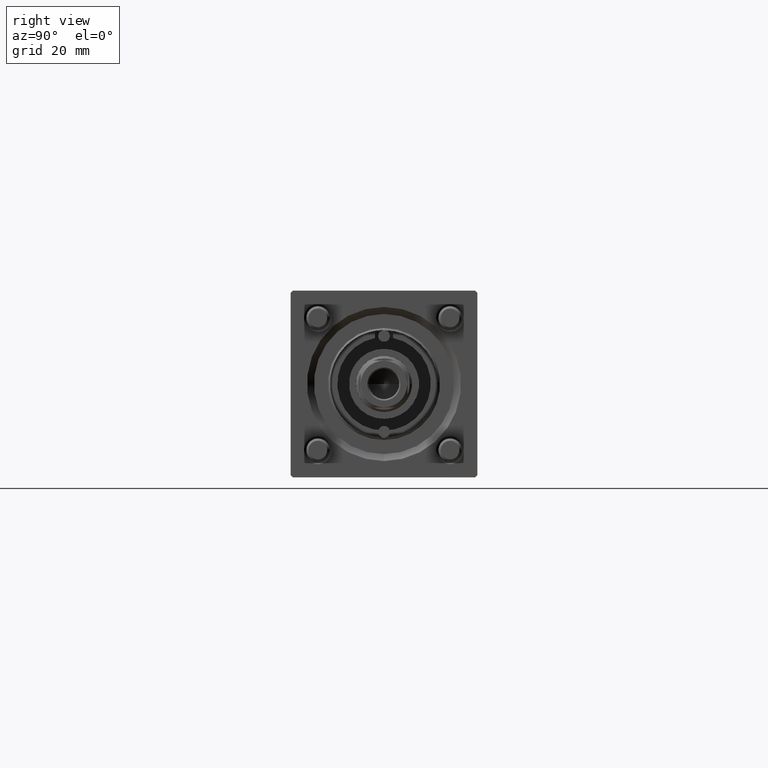
[diagram: clean part render]
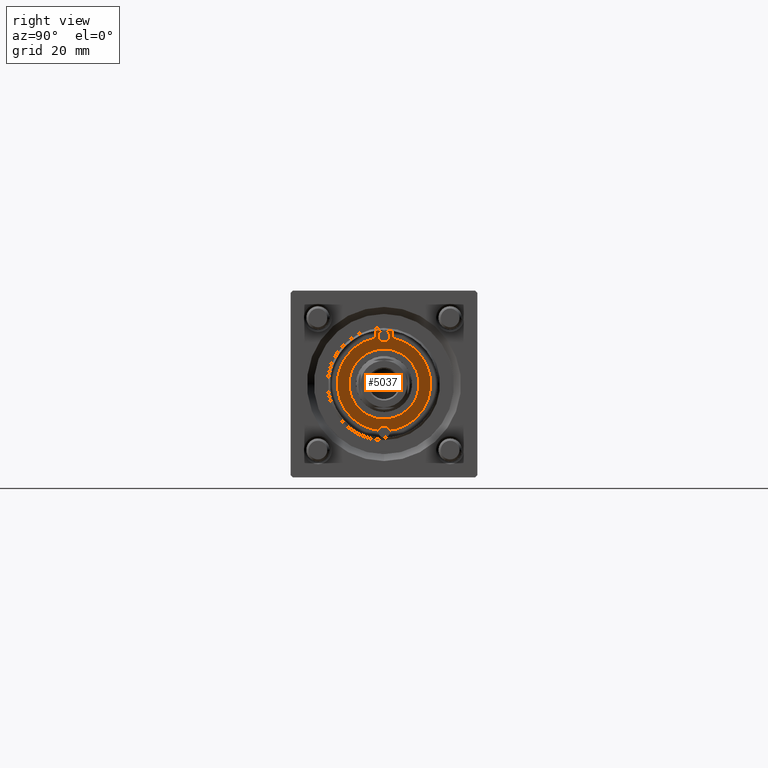
[diagram: same view with one face highlighted and labeled with its STEP entity id]
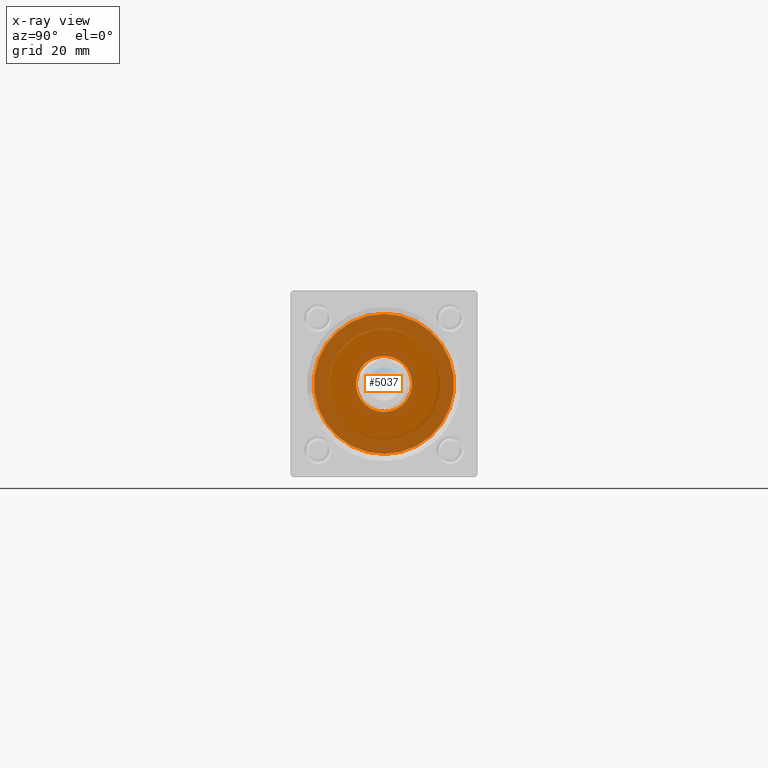
[diagram: x-ray of the same camera — body ghosted, the highlighted face saturated]
A machine part, right view. The second image highlights one B-rep face of the part: STEP entity #5037.
The next image is the same camera in x-ray: the body ghosted, the highlighted face saturated — about 61% of this face is hidden behind the body in this view.
In plain terms, the highlighted planar face has unit normal (1, 0, 0).
Its self-contained STEP definition (entity closure, byte-faithful):
#311 = DIRECTION ( 'NONE',  ( -0.000000000000000000, -0.000000000000000000, -1.000000000000000000 ) ) ;
#436 = DIRECTION ( 'NONE',  ( 1.000000000000000000, 0.000000000000000000, 0.000000000000000000 ) ) ;
#2588 = ORIENTED_EDGE ( 'NONE', *, *, #53314, .F. ) ;
#3726 = EDGE_LOOP ( 'NONE', ( #29638, #18671 ) ) ;
#4458 = CIRCLE ( 'NONE', #52230, 15.00000000000000000 ) ;
#5037 = ADVANCED_FACE ( 'NONE', ( #38683, #11934 ), #16527, .F. ) ;
#7606 = EDGE_CURVE ( 'NONE', #56659, #45566, #43214, .T. ) ;
#8229 = CIRCLE ( 'NONE', #18349, 6.000000000000000888 ) ;
#9208 = DIRECTION ( 'NONE',  ( 1.000000000000000000, 0.000000000000000000, 0.000000000000000000 ) ) ;
#9790 = CARTESIAN_POINT ( 'NONE',  ( 0.000000000000000000, 0.000000000000000000, 0.000000000000000000 ) ) ;
#11934 = FACE_OUTER_BOUND ( 'NONE', #3726, .T. ) ;
#13056 = DIRECTION ( 'NONE',  ( 0.000000000000000000, 0.000000000000000000, 1.000000000000000000 ) ) ;
#13495 = EDGE_CURVE ( 'NONE', #45566, #56659, #4458, .T. ) ;
#16527 = PLANE ( 'NONE',  #21064 ) ;
#18349 = AXIS2_PLACEMENT_3D ( 'NONE', #9790, #311, #9208 ) ;
#18401 = AXIS2_PLACEMENT_3D ( 'NONE', #52781, #34392, #44155 ) ;
#18671 = ORIENTED_EDGE ( 'NONE', *, *, #7606, .F. ) ;
#19504 = CARTESIAN_POINT ( 'NONE',  ( 6.000000000000000888, 0.000000000000000000, 0.000000000000000000 ) ) ;
#20992 = EDGE_CURVE ( 'NONE', #32899, #48872, #8229, .T. ) ;
#21064 = AXIS2_PLACEMENT_3D ( 'NONE', #47023, #13056, #56226 ) ;
#21613 = CARTESIAN_POINT ( 'NONE',  ( -15.00000000000000000, 0.000000000000000000, 0.000000000000000000 ) ) ;
#23353 = ORIENTED_EDGE ( 'NONE', *, *, #20992, .F. ) ;
#29638 = ORIENTED_EDGE ( 'NONE', *, *, #13495, .F. ) ;
#30827 = CARTESIAN_POINT ( 'NONE',  ( 15.00000000000000000, 1.836970198721029589E-15, 0.000000000000000000 ) ) ;
#32899 = VERTEX_POINT ( 'NONE', #19504 ) ;
#34392 = DIRECTION ( 'NONE',  ( 0.000000000000000000, 0.000000000000000000, 1.000000000000000000 ) ) ;
#38152 = DIRECTION ( 'NONE',  ( -0.000000000000000000, -0.000000000000000000, -1.000000000000000000 ) ) ;
#38683 = FACE_BOUND ( 'NONE', #43648, .T. ) ;
#42475 = CARTESIAN_POINT ( 'NONE',  ( 0.000000000000000000, 0.000000000000000000, 0.000000000000000000 ) ) ;
#42768 = CARTESIAN_POINT ( 'NONE',  ( -6.000000000000000888, 7.347880794884119736E-16, 0.000000000000000000 ) ) ;
#43214 = CIRCLE ( 'NONE', #18401, 15.00000000000000000 ) ;
#43648 = EDGE_LOOP ( 'NONE', ( #23353, #2588 ) ) ;
#44155 = DIRECTION ( 'NONE',  ( 1.000000000000000000, 0.000000000000000000, 0.000000000000000000 ) ) ;
#45029 = AXIS2_PLACEMENT_3D ( 'NONE', #42475, #38152, #436 ) ;
#45566 = VERTEX_POINT ( 'NONE', #21613 ) ;
#47023 = CARTESIAN_POINT ( 'NONE',  ( 0.000000000000000000, 0.000000000000000000, 0.000000000000000000 ) ) ;
#47542 = DIRECTION ( 'NONE',  ( 0.000000000000000000, 0.000000000000000000, 1.000000000000000000 ) ) ;
#47757 = CIRCLE ( 'NONE', #45029, 6.000000000000000888 ) ;
#48872 = VERTEX_POINT ( 'NONE', #42768 ) ;
#52230 = AXIS2_PLACEMENT_3D ( 'NONE', #52432, #47542, #53798 ) ;
#52432 = CARTESIAN_POINT ( 'NONE',  ( 0.000000000000000000, 0.000000000000000000, 0.000000000000000000 ) ) ;
#52781 = CARTESIAN_POINT ( 'NONE',  ( 0.000000000000000000, 0.000000000000000000, 0.000000000000000000 ) ) ;
#53314 = EDGE_CURVE ( 'NONE', #48872, #32899, #47757, .T. ) ;
#53798 = DIRECTION ( 'NONE',  ( 1.000000000000000000, 0.000000000000000000, 0.000000000000000000 ) ) ;
#56226 = DIRECTION ( 'NONE',  ( 1.000000000000000000, 0.000000000000000000, -0.000000000000000000 ) ) ;
#56659 = VERTEX_POINT ( 'NONE', #30827 ) ;